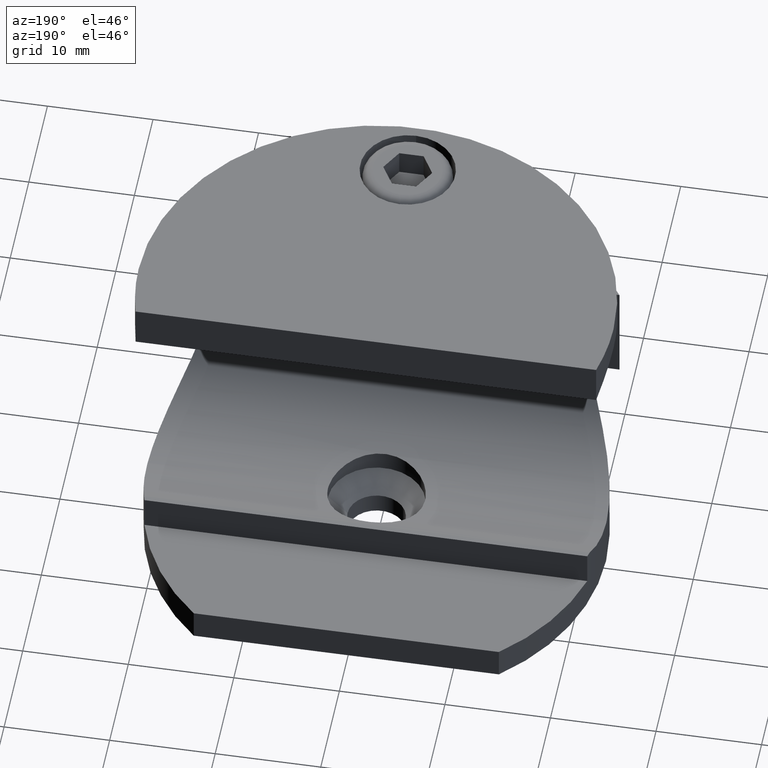
[diagram: clean part render]
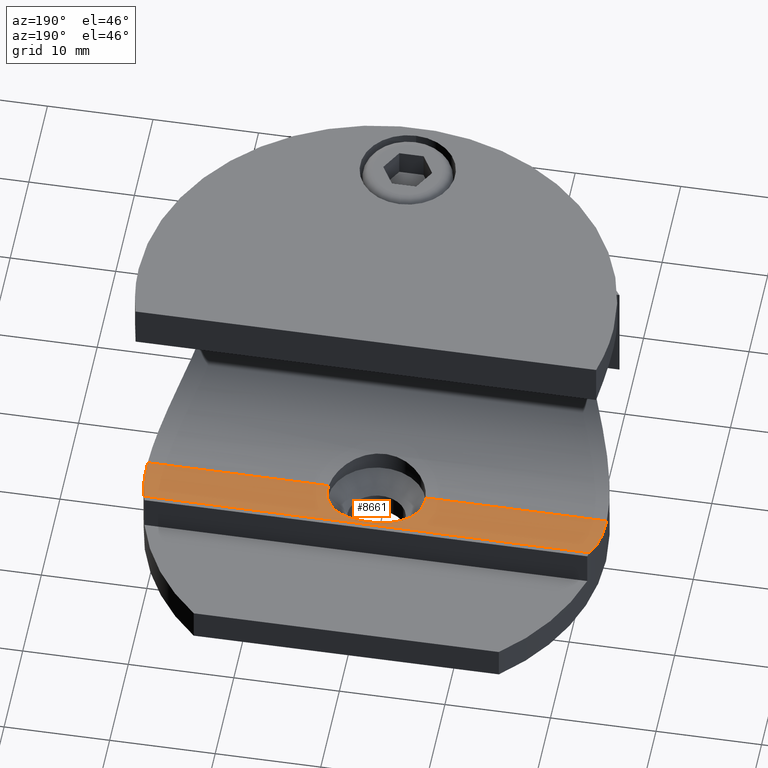
[diagram: same view with one face highlighted and labeled with its STEP entity id]
A machine part, auxiliary view. The second image highlights one B-rep face of the part: STEP entity #8661.
In plain terms, the highlighted cylindrical surface (partial cylindrical patch) has radius 12.5 mm, axis along (1, 0, 0).
Its self-contained STEP definition (entity closure, byte-faithful):
#49 = CARTESIAN_POINT ( 'NONE',  ( -4.361379127850086400, 1.492938613194778200, 5.131908606992111800 ) ) ;
#73 = ORIENTED_EDGE ( 'NONE', *, *, #8594, .T. ) ;
#121 = EDGE_CURVE ( 'NONE', #7195, #825, #2405, .T. ) ;
#127 = VERTEX_POINT ( 'NONE', #5167 ) ;
#162 = CARTESIAN_POINT ( 'NONE',  ( -4.592539350590236300, 0.3028781718058283800, 5.015620653857677500 ) ) ;
#185 = CARTESIAN_POINT ( 'NONE',  ( 21.75000000000000000, 2.691403364878100200E-015, 5.004624855571558200 ) ) ;
#208 = CARTESIAN_POINT ( 'NONE',  ( -4.562484639281668900, 0.6057118044045684000, 5.034902760701010400 ) ) ;
#261 = CARTESIAN_POINT ( 'NONE',  ( 3.465854443051945100, 3.039190016006193800, 5.463407614495730900 ) ) ;
#418 = CARTESIAN_POINT ( 'NONE',  ( 4.362676639271122700, 1.489450614945670500, 5.131358579643817000 ) ) ;
#825 = VERTEX_POINT ( 'NONE', #8146 ) ;
#1010 = VERTEX_POINT ( 'NONE', #2369 ) ;
#1034 = AXIS2_PLACEMENT_3D ( 'NONE', #12216, #14968, #6513 ) ;
#1371 = CARTESIAN_POINT ( 'NONE',  ( -1.491118515833177900, 4.362082959325484800, 5.917426158056258600 ) ) ;
#1528 = CARTESIAN_POINT ( 'NONE',  ( 3.044709778260180900, 3.461006405654497800, 5.589885318636568500 ) ) ;
#1697 = CARTESIAN_POINT ( 'NONE',  ( 4.569453201166449900, 0.6086962895488440300, 5.032531541863150400 ) ) ;
#1874 = EDGE_CURVE ( 'NONE', #4273, #7195, #2694, .T. ) ;
#2023 = B_SPLINE_CURVE_WITH_KNOTS ( 'NONE', 3,
 ( #11053, #13437, #8660, #13330, #7422 ),
 .UNSPECIFIED., .F., .F.,
 ( 4, 1, 4 ),
 ( 0.01414061235352823800, 0.01431069046748102400, 0.01448076858143381100 ),
 .UNSPECIFIED. ) ;
#2091 = CARTESIAN_POINT ( 'NONE',  ( -4.587417574191388100, -0.3400000000000000200, 4.999999999999995600 ) ) ;
#2369 = CARTESIAN_POINT ( 'NONE',  ( -21.75000000000000000, 4.093164445049621300E-017, 5.004624855571557300 ) ) ;
#2405 = B_SPLINE_CURVE_WITH_KNOTS ( 'NONE', 3,
 ( #2631, #14711, #7642, #185 ),
 .UNSPECIFIED., .F., .F.,
 ( 4, 4 ),
 ( 0.01856214643393727000, 0.01890192047081439400 ),
 .UNSPECIFIED. ) ;
#2518 = B_SPLINE_CURVE_WITH_KNOTS ( 'NONE', 3,
 ( #3775, #12200, #162, #208, #12240, #14589, #49, #13469, #4894, #12301, #4980, #6231, #13416, #14737, #8696, #1371, #12350, #12156, #4841, #13360, #7295, #15778, #15053, #7667, #11296, #9013, #1528, #261, #13679, #13629, #8850, #418, #8794, #1697, #3984, #12622 ),
 .UNSPECIFIED., .F., .F.,
 ( 4, 2, 2, 2, 2, 2, 2, 2, 2, 2, 2, 2, 2, 2, 2, 2, 2, 4 ),
 ( 0.01448076858143381100, 0.01493535086379969500, 0.01538993314616557800, 0.01629909771089734600, 0.01720826227562911200, 0.01811742684036088100, 0.01902659140509264900, 0.01993575596982441500, 0.02084492053455618300, 0.02175408509928795200, 0.02266324966401971800, 0.02357241422875148600, 0.02448157879348325500, 0.02539074335821502000, 0.02629990792294678600, 0.02720907248767855500, 0.02811823705241032300, 0.02902740161714209200 ),
 .UNSPECIFIED. ) ;
#2534 = B_SPLINE_CURVE_WITH_KNOTS ( 'NONE', 3,
 ( #9616, #5981, #13162, #14490, #12122 ),
 .UNSPECIFIED., .F., .F.,
 ( 4, 1, 4 ),
 ( 0.0000000000000000000, 0.0001686439738801896300, 0.0003372879477603792600 ),
 .UNSPECIFIED. ) ;
#2631 = CARTESIAN_POINT ( 'NONE',  ( 21.74734236636743700, -0.3400000000000000200, 4.999999999999994700 ) ) ;
#2694 = LINE ( 'NONE', #3828, #8045 ) ;
#3318 = VERTEX_POINT ( 'NONE', #10282 ) ;
#3657 = EDGE_CURVE ( 'NONE', #825, #5015, #10040, .T. ) ;
#3775 = CARTESIAN_POINT ( 'NONE',  ( -4.599999999999999600, 5.922856875994244700E-016, 5.004624855571558200 ) ) ;
#3828 = CARTESIAN_POINT ( 'NONE',  ( -21.75000000000000000, -0.3400000000000000200, 4.999999999999995600 ) ) ;
#3984 = CARTESIAN_POINT ( 'NONE',  ( 4.600000000000000500, 0.3074672734151395200, 5.012991060807723700 ) ) ;
#4057 = CARTESIAN_POINT ( 'NONE',  ( 4.587417574192316200, -0.3399999999999917000, 4.999999999999656300 ) ) ;
#4273 = VERTEX_POINT ( 'NONE', #4057 ) ;
#4475 = CARTESIAN_POINT ( 'NONE',  ( 21.10665955980768200, 5.250849667089979400, 6.320000000000001200 ) ) ;
#4664 = EDGE_LOOP ( 'NONE', ( #5381, #6406, #13221, #73, #14519, #7117, #15715, #13210, #12300, #11106 ) ) ;
#4724 = B_SPLINE_CURVE_WITH_KNOTS ( 'NONE', 3,
 ( #11997, #4732, #6233, #7571, #12303, #11085, #14789, #13417 ),
 .UNSPECIFIED., .F., .F.,
 ( 4, 2, 2, 4 ),
 ( 0.01264490045691550300, 0.01538537401718697300, 0.01675561079732270800, 0.01812584757745844300 ),
 .UNSPECIFIED. ) ;
#4732 = CARTESIAN_POINT ( 'NONE',  ( -21.30771011246988400, 4.442693685030796800, 5.915860590048986000 ) ) ;
#4751 = VECTOR ( 'NONE', #11950, 1000.000000000000000 ) ;
#4841 = CARTESIAN_POINT ( 'NONE',  ( -0.3024559544620658600, 4.600099342077000700, 6.017603973814343200 ) ) ;
#4894 = CARTESIAN_POINT ( 'NONE',  ( -3.985426739696311200, 2.316278818911632800, 5.282845097306500600 ) ) ;
#4980 = CARTESIAN_POINT ( 'NONE',  ( -3.464567970890814600, 3.040879572221696100, 5.463854873131526600 ) ) ;
#5015 = VERTEX_POINT ( 'NONE', #4475 ) ;
#5167 = CARTESIAN_POINT ( 'NONE',  ( -21.74734236636743700, -0.3400000000000000200, 4.999999999999994700 ) ) ;
#5381 = ORIENTED_EDGE ( 'NONE', *, *, #8943, .T. ) ;
#5420 = VERTEX_POINT ( 'NONE', #12502 ) ;
#5477 = LINE ( 'NONE', #11774, #8158 ) ;
#5861 = CARTESIAN_POINT ( 'NONE',  ( 21.73569495339382100, 0.9104447781802143000, 5.054264924081226500 ) ) ;
#5863 = EDGE_CURVE ( 'NONE', #5420, #5015, #12779, .T. ) ;
#5959 = CARTESIAN_POINT ( 'NONE',  ( 21.67863660939308400, 1.818257286246112200, 5.179210284661189200 ) ) ;
#5981 = CARTESIAN_POINT ( 'NONE',  ( 4.599999999999998800, -0.05703313221642576600, 5.003072980199314100 ) ) ;
#5982 = EDGE_CURVE ( 'NONE', #3318, #12092, #2518, .T. ) ;
#6075 = CARTESIAN_POINT ( 'NONE',  ( 21.75000000000000000, 2.691403364878100200E-015, 5.004624855571558200 ) ) ;
#6231 = CARTESIAN_POINT ( 'NONE',  ( -3.039815098503589700, 3.465501978730834800, 5.591293483892493500 ) ) ;
#6233 = CARTESIAN_POINT ( 'NONE',  ( -21.46819849966799200, 3.600309869719526800, 5.602765358247317800 ) ) ;
#6238 = VERTEX_POINT ( 'NONE', #2091 ) ;
#6406 = ORIENTED_EDGE ( 'NONE', *, *, #9998, .T. ) ;
#6482 = CARTESIAN_POINT ( 'NONE',  ( -21.75000000000000000, -0.1134148620825118800, 5.001538829528931800 ) ) ;
#6513 = DIRECTION ( 'NONE',  ( 0.0000000000000000000, 0.0000000000000000000, -1.000000000000000000 ) ) ;
#7117 = ORIENTED_EDGE ( 'NONE', *, *, #14951, .T. ) ;
#7195 = VERTEX_POINT ( 'NONE', #8690 ) ;
#7295 = CARTESIAN_POINT ( 'NONE',  ( 0.6069460746352612900, 4.569969134951163500, 6.004503076207568000 ) ) ;
#7422 = CARTESIAN_POINT ( 'NONE',  ( -4.599999999999999600, 5.922856875994244700E-016, 5.004624855571558200 ) ) ;
#7571 = CARTESIAN_POINT ( 'NONE',  ( -21.63435459007704900, 2.283204100731820700, 5.269960803681528600 ) ) ;
#7609 = CARTESIAN_POINT ( 'NONE',  ( -21.74911295781986100, -0.2267480632150229400, 4.999999999999994700 ) ) ;
#7642 = CARTESIAN_POINT ( 'NONE',  ( 21.75000000000000000, -0.1132794423773083600, 5.001542514308241000 ) ) ;
#7667 = CARTESIAN_POINT ( 'NONE',  ( 2.050886905472399500, 4.128442182581557600, 5.825304436199752800 ) ) ;
#8045 = VECTOR ( 'NONE', #12359, 1000.000000000000000 ) ;
#8146 = CARTESIAN_POINT ( 'NONE',  ( 21.75000000000000000, 2.691403364878100200E-015, 5.004624855571558200 ) ) ;
#8158 = VECTOR ( 'NONE', #12976, 1000.000000000000000 ) ;
#8594 = EDGE_CURVE ( 'NONE', #6238, #3318, #2023, .T. ) ;
#8661 = ADVANCED_FACE ( 'NONE', ( #15189 ), #11216, .F. ) ;
#8660 = CARTESIAN_POINT ( 'NONE',  ( -4.597906822050199500, -0.1699916735032519800, 5.000770744030817600 ) ) ;
#8690 = CARTESIAN_POINT ( 'NONE',  ( 21.74734236636743700, -0.3400000000000000200, 4.999999999999994700 ) ) ;
#8696 = CARTESIAN_POINT ( 'NONE',  ( -2.048616546541437900, 4.129693985943143600, 5.825778971062685900 ) ) ;
#8794 = CARTESIAN_POINT ( 'NONE',  ( 4.451331197816804400, 1.198359002095636300, 5.091484940368075300 ) ) ;
#8850 = CARTESIAN_POINT ( 'NONE',  ( 4.130194959338578700, 2.047657244525611400, 5.226888209563962400 ) ) ;
#8943 = EDGE_CURVE ( 'NONE', #5420, #1010, #4724, .T. ) ;
#9013 = CARTESIAN_POINT ( 'NONE',  ( 2.815522270770053600, 3.650012006414436800, 5.652585582207106700 ) ) ;
#9208 = EDGE_CURVE ( 'NONE', #127, #6238, #5477, .T. ) ;
#9616 = CARTESIAN_POINT ( 'NONE',  ( 4.599999999999999600, 0.0000000000000000000, 5.004624855571559100 ) ) ;
#9998 = EDGE_CURVE ( 'NONE', #1010, #127, #12557, .T. ) ;
#10040 = B_SPLINE_CURVE_WITH_KNOTS ( 'NONE', 3,
 ( #6075, #14371, #5861, #5959, #13195, #14585, #15567, #13309 ),
 .UNSPECIFIED., .F., .F.,
 ( 4, 2, 2, 4 ),
 ( 0.01890192047081439400, 0.02026863257080761100, 0.02163534467080083200, 0.02436876887078727100 ),
 .UNSPECIFIED. ) ;
#10077 = CARTESIAN_POINT ( 'NONE',  ( -21.74734236636743700, -0.3400000000000000200, 4.999999999999994700 ) ) ;
#10282 = CARTESIAN_POINT ( 'NONE',  ( -4.599999999999999600, 5.922856875994244700E-016, 5.004624855571558200 ) ) ;
#10540 = CARTESIAN_POINT ( 'NONE',  ( 4.599999999999999600, 0.0000000000000000000, 5.004624855571559100 ) ) ;
#11053 = CARTESIAN_POINT ( 'NONE',  ( -4.587417574191388100, -0.3400000000000000200, 4.999999999999995600 ) ) ;
#11085 = CARTESIAN_POINT ( 'NONE',  ( -21.73537906506940200, 0.9198384626996156700, 5.055069309199349300 ) ) ;
#11106 = ORIENTED_EDGE ( 'NONE', *, *, #5863, .F. ) ;
#11216 = CYLINDRICAL_SURFACE ( 'NONE', #1034, 12.50000000000000500 ) ;
#11285 = CARTESIAN_POINT ( 'NONE',  ( -21.75000000000000000, 4.093164445049621300E-017, 5.004624855571557300 ) ) ;
#11296 = CARTESIAN_POINT ( 'NONE',  ( 2.318310770142875100, 3.984368014781173100, 5.770495940961707100 ) ) ;
#11774 = CARTESIAN_POINT ( 'NONE',  ( -21.75000000000000000, -0.3400000000000000200, 4.999999999999995600 ) ) ;
#11950 = DIRECTION ( 'NONE',  ( 1.000000000000000000, -0.0000000000000000000, -0.0000000000000000000 ) ) ;
#11997 = CARTESIAN_POINT ( 'NONE',  ( -21.10665955980768200, 5.250849667089979400, 6.320000000000001200 ) ) ;
#12092 = VERTEX_POINT ( 'NONE', #10540 ) ;
#12122 = CARTESIAN_POINT ( 'NONE',  ( 4.587417574192316200, -0.3399999999999917000, 4.999999999999656300 ) ) ;
#12156 = CARTESIAN_POINT ( 'NONE',  ( -0.6112177731838049900, 4.569216136001918100, 6.004184202769214300 ) ) ;
#12200 = CARTESIAN_POINT ( 'NONE',  ( -4.600000000000000500, 0.1514466600435669100, 5.008745729400446000 ) ) ;
#12216 = CARTESIAN_POINT ( 'NONE',  ( -21.75000000000000000, -0.3400000000000000200, 17.50000000000000000 ) ) ;
#12240 = CARTESIAN_POINT ( 'NONE',  ( -4.539676900671772800, 0.7579364749739396800, 5.047410165421020200 ) ) ;
#12300 = ORIENTED_EDGE ( 'NONE', *, *, #3657, .T. ) ;
#12301 = CARTESIAN_POINT ( 'NONE',  ( -3.653321181839658900, 2.811052864452519500, 5.401010086555488400 ) ) ;
#12303 = CARTESIAN_POINT ( 'NONE',  ( -21.67729046500768000, 1.835179553996351600, 5.182042102734500100 ) ) ;
#12350 = CARTESIAN_POINT ( 'NONE',  ( -1.203734807516705600, 4.449982671531294900, 5.953994200578608600 ) ) ;
#12359 = DIRECTION ( 'NONE',  ( 1.000000000000000000, -0.0000000000000000000, -0.0000000000000000000 ) ) ;
#12502 = CARTESIAN_POINT ( 'NONE',  ( -21.10665955980768200, 5.250849667089979400, 6.320000000000001200 ) ) ;
#12557 = B_SPLINE_CURVE_WITH_KNOTS ( 'NONE', 3,
 ( #11285, #6482, #7609, #10077 ),
 .UNSPECIFIED., .F., .F.,
 ( 4, 4 ),
 ( 0.01812584757745844300, 0.01846513282766101100 ),
 .UNSPECIFIED. ) ;
#12622 = CARTESIAN_POINT ( 'NONE',  ( 4.599999999999999600, 0.0000000000000000000, 5.004624855571559100 ) ) ;
#12779 = LINE ( 'NONE', #13144, #4751 ) ;
#12976 = DIRECTION ( 'NONE',  ( 1.000000000000000000, -0.0000000000000000000, -0.0000000000000000000 ) ) ;
#13144 = CARTESIAN_POINT ( 'NONE',  ( -21.75000000000000000, 5.250849667089979400, 6.320000000000001200 ) ) ;
#13162 = CARTESIAN_POINT ( 'NONE',  ( 4.597879463208250300, -0.1707287761650752300, 5.000760767347339100 ) ) ;
#13195 = CARTESIAN_POINT ( 'NONE',  ( 21.63544383570422300, 2.273507055015270100, 5.267760497676752300 ) ) ;
#13210 = ORIENTED_EDGE ( 'NONE', *, *, #121, .T. ) ;
#13221 = ORIENTED_EDGE ( 'NONE', *, *, #9208, .T. ) ;
#13309 = CARTESIAN_POINT ( 'NONE',  ( 21.10665955980768200, 5.250849667089979400, 6.320000000000001200 ) ) ;
#13330 = CARTESIAN_POINT ( 'NONE',  ( -4.600000000000001400, -0.05666248620734069100, 5.003083065502209200 ) ) ;
#13360 = CARTESIAN_POINT ( 'NONE',  ( 0.3054701971348418000, 4.599900164137175700, 6.017518283049115600 ) ) ;
#13416 = CARTESIAN_POINT ( 'NONE',  ( -2.809319444769926600, 3.654605918189747900, 5.654157815469763400 ) ) ;
#13417 = CARTESIAN_POINT ( 'NONE',  ( -21.75000000000000000, 4.093164445049621300E-017, 5.004624855571557300 ) ) ;
#13437 = CARTESIAN_POINT ( 'NONE',  ( -4.591617774344866700, -0.2833292000024087400, 4.999999999999996400 ) ) ;
#13469 = CARTESIAN_POINT ( 'NONE',  ( -4.129801059369261100, 2.048227724069483300, 5.227033080647446500 ) ) ;
#13629 = CARTESIAN_POINT ( 'NONE',  ( 3.988854880145969300, 2.310328331448599800, 5.281553711477240400 ) ) ;
#13679 = CARTESIAN_POINT ( 'NONE',  ( 3.657883154681148300, 2.805079514141850100, 5.399456837822526700 ) ) ;
#14371 = CARTESIAN_POINT ( 'NONE',  ( 21.75000000000000400, 0.4556569006876304300, 5.017023310555351200 ) ) ;
#14490 = CARTESIAN_POINT ( 'NONE',  ( 4.591590586333858900, -0.2836960316480423000, 4.999999999999991100 ) ) ;
#14519 = ORIENTED_EDGE ( 'NONE', *, *, #5982, .T. ) ;
#14585 = CARTESIAN_POINT ( 'NONE',  ( 21.46843609867306300, 3.600528942482764400, 5.602326230363230400 ) ) ;
#14589 = CARTESIAN_POINT ( 'NONE',  ( -4.449702251031967900, 1.205274295550693900, 5.092262103152707600 ) ) ;
#14711 = CARTESIAN_POINT ( 'NONE',  ( 21.74911507342902400, -0.2266127429890227300, 4.999999999999995600 ) ) ;
#14737 = CARTESIAN_POINT ( 'NONE',  ( -2.315419602021512100, 3.985881612216360300, 5.771078405091070200 ) ) ;
#14789 = CARTESIAN_POINT ( 'NONE',  ( -21.75000000000000700, 0.4580370509672853600, 5.017088074604903800 ) ) ;
#14951 = EDGE_CURVE ( 'NONE', #12092, #4273, #2534, .T. ) ;
#14968 = DIRECTION ( 'NONE',  ( 1.000000000000000000, -0.0000000000000000000, -0.0000000000000000000 ) ) ;
#15053 = CARTESIAN_POINT ( 'NONE',  ( 1.496762196371026900, 4.360031522990577300, 5.916598266079764900 ) ) ;
#15189 = FACE_OUTER_BOUND ( 'NONE', #4664, .T. ) ;
#15567 = CARTESIAN_POINT ( 'NONE',  ( 21.30723598575137600, 4.444599515871517200, 5.916813650310287700 ) ) ;
#15715 = ORIENTED_EDGE ( 'NONE', *, *, #1874, .T. ) ;
#15778 = CARTESIAN_POINT ( 'NONE',  ( 1.204923504468721400, 4.449849523332249000, 5.953936256241775000 ) ) ;